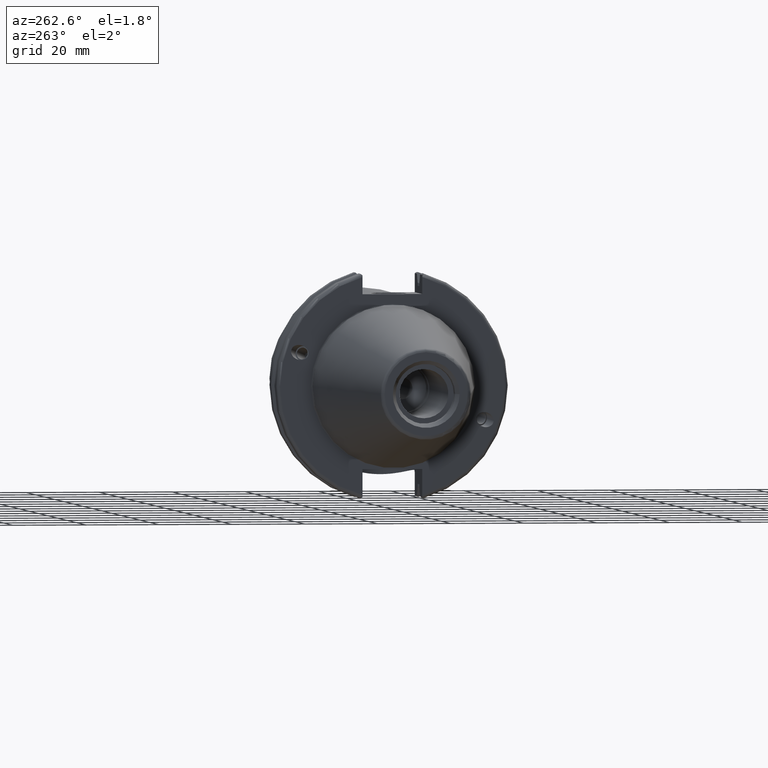
[diagram: clean part render]
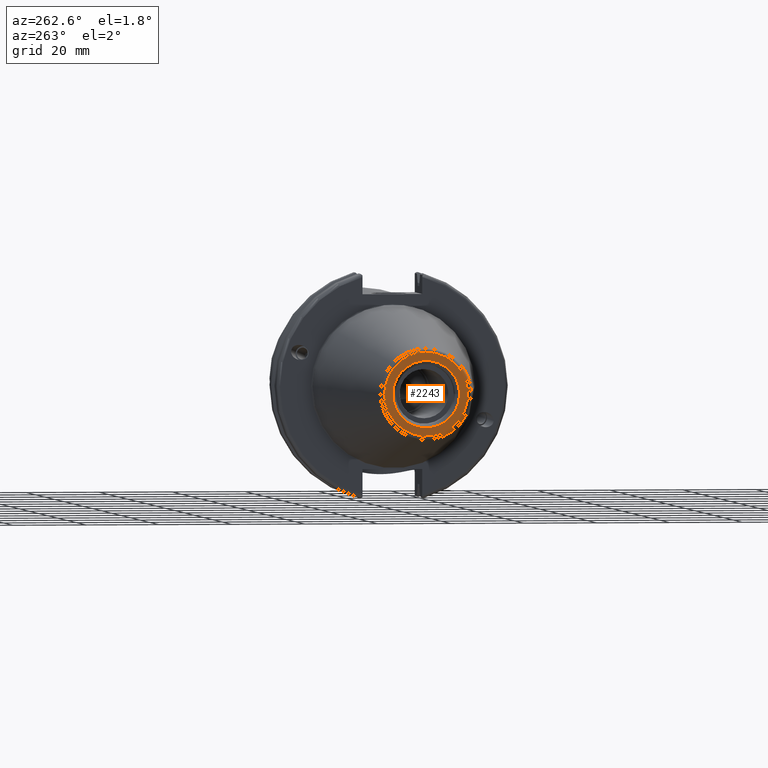
[diagram: same view with one face highlighted and labeled with its STEP entity id]
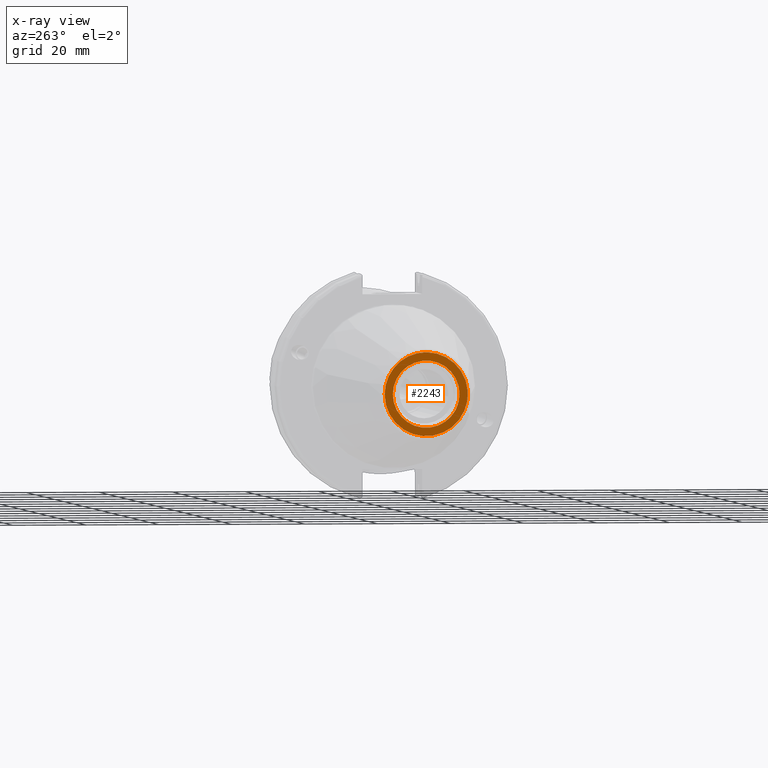
[diagram: x-ray of the same camera — body ghosted, the highlighted face saturated]
A machine part, auxiliary view. The second image highlights one B-rep face of the part: STEP entity #2243.
The next image is the same camera in x-ray: the body ghosted, the highlighted face saturated — about 0% of this face is hidden behind the body in this view.
In plain terms, the highlighted planar face has unit normal (-1, 0, 0).
Its self-contained STEP definition (entity closure, byte-faithful):
#52=PLANE('',#2560);
#137=FACE_BOUND('',#391,.T.);
#266=FACE_OUTER_BOUND('',#390,.T.);
#390=EDGE_LOOP('',(#1984,#1985));
#391=EDGE_LOOP('',(#1986,#1987));
#775=CIRCLE('',#2557,11.4071305970304);
#776=CIRCLE('',#2558,11.4071305970304);
#778=CIRCLE('',#2561,9.15);
#779=CIRCLE('',#2562,9.15);
#1032=VERTEX_POINT('',#4343);
#1033=VERTEX_POINT('',#4345);
#1034=VERTEX_POINT('',#4350);
#1035=VERTEX_POINT('',#4351);
#1369=EDGE_CURVE('',#1032,#1033,#775,.T.);
#1370=EDGE_CURVE('',#1033,#1032,#776,.T.);
#1372=EDGE_CURVE('',#1034,#1035,#778,.T.);
#1373=EDGE_CURVE('',#1035,#1034,#779,.T.);
#1984=ORIENTED_EDGE('',*,*,#1370,.F.);
#1985=ORIENTED_EDGE('',*,*,#1369,.F.);
#1986=ORIENTED_EDGE('',*,*,#1372,.T.);
#1987=ORIENTED_EDGE('',*,*,#1373,.T.);
#2243=ADVANCED_FACE('',(#266,#137),#52,.T.);
#2557=AXIS2_PLACEMENT_3D('',#4346,#3228,#3229);
#2558=AXIS2_PLACEMENT_3D('',#4347,#3230,#3231);
#2560=AXIS2_PLACEMENT_3D('',#4349,#3234,#3235);
#2561=AXIS2_PLACEMENT_3D('',#4352,#3236,#3237);
#2562=AXIS2_PLACEMENT_3D('',#4353,#3238,#3239);
#3228=DIRECTION('center_axis',(1.,0.,0.));
#3229=DIRECTION('ref_axis',(0.,-1.,1.83697019872103E-16));
#3230=DIRECTION('center_axis',(1.,0.,0.));
#3231=DIRECTION('ref_axis',(0.,-1.,1.83697019872103E-16));
#3234=DIRECTION('center_axis',(-1.,0.,0.));
#3235=DIRECTION('ref_axis',(0.,0.,1.));
#3236=DIRECTION('center_axis',(1.,0.,0.));
#3237=DIRECTION('ref_axis',(0.,0.,-1.));
#3238=DIRECTION('center_axis',(1.,0.,0.));
#3239=DIRECTION('ref_axis',(0.,0.,-1.));
#4343=CARTESIAN_POINT('',(-68.25,-1.39697059731091E-15,11.4071305970304));
#4345=CARTESIAN_POINT('',(-68.25,11.4071305970304,-6.98485298655456E-16));
#4346=CARTESIAN_POINT('Origin',(-68.25,0.,0.));
#4347=CARTESIAN_POINT('Origin',(-68.25,0.,0.));
#4349=CARTESIAN_POINT('Origin',(-68.25,12.271875,0.));
#4350=CARTESIAN_POINT('',(-68.25,9.15,0.));
#4351=CARTESIAN_POINT('',(-68.25,-9.15,-1.12055182121983E-15));
#4352=CARTESIAN_POINT('Origin',(-68.25,0.,0.));
#4353=CARTESIAN_POINT('Origin',(-68.25,0.,0.));